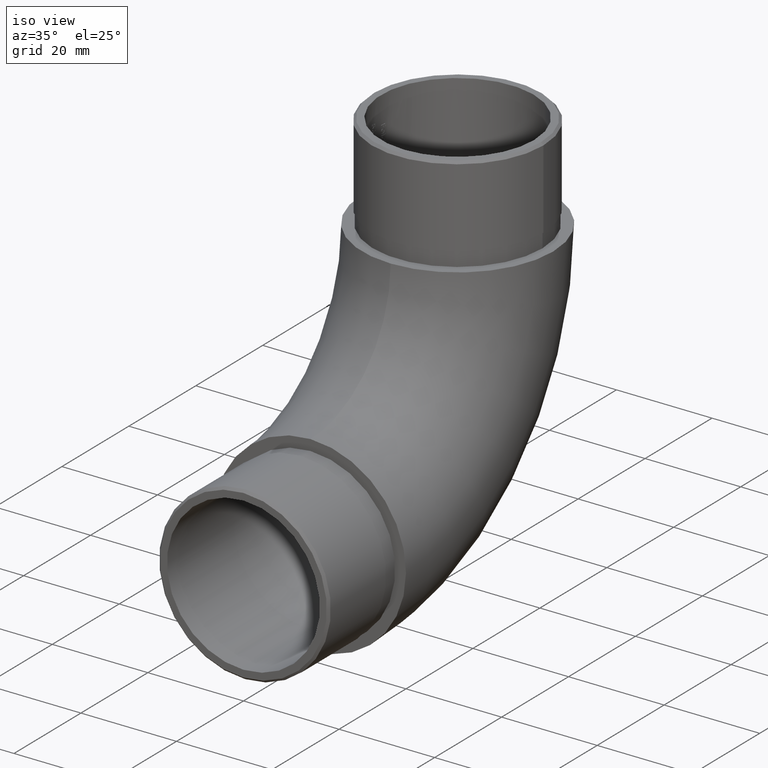
[diagram: clean part render]
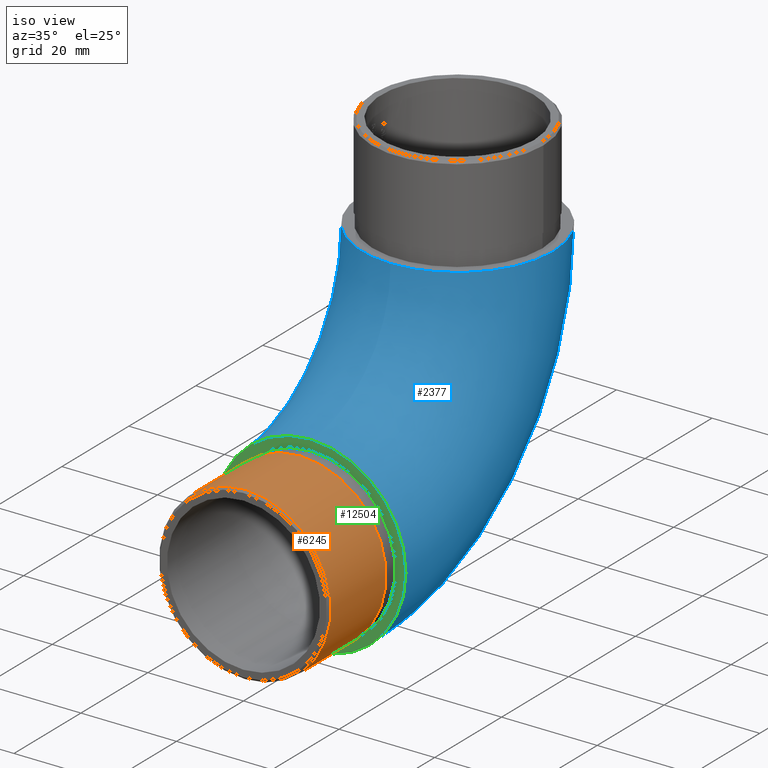
[diagram: same view with three faces highlighted in distinct colors, each labeled with its STEP entity id]
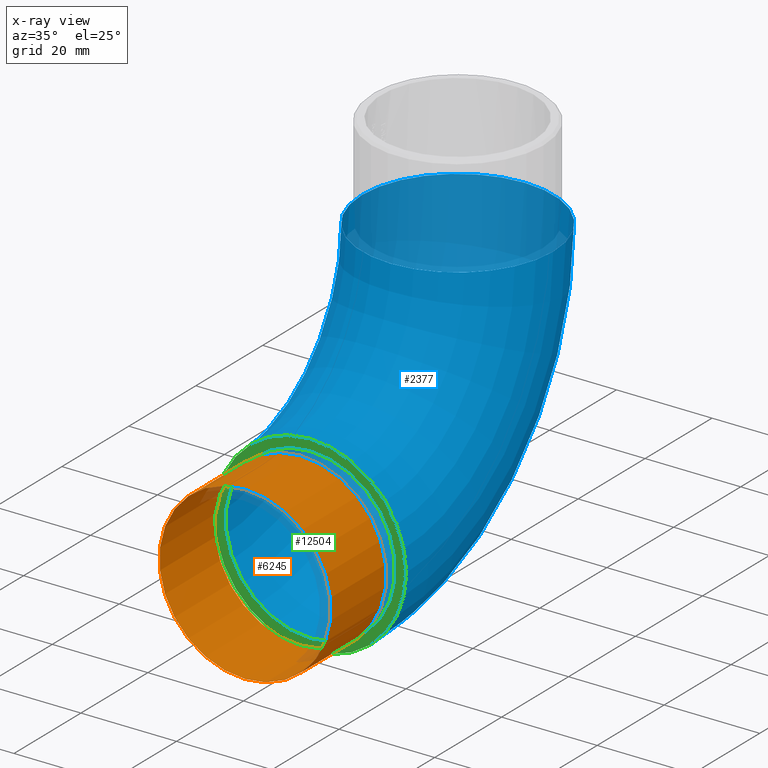
[diagram: x-ray of the same camera — body ghosted, the three highlighted faces saturated]
A machine part, iso view with three faces highlighted in distinct colors.
The next image is the same camera in x-ray (body ghosted, the three faces saturated) — at least one of them is partly hidden behind the body in this view.
Their STEP definitions:

[orange] entity #6245 — the highlighted cylindrical surface (bore or boss wall) has radius 17.95 mm, axis along (-0, 1, -0).
#159 = CARTESIAN_POINT ( 'NONE',  ( 0.0000000000000000000, -3.000000000000000000, 2.050000000000010000 ) ) ;
#1549 = CARTESIAN_POINT ( 'NONE',  ( 0.0000000000000000000, -20.00000000000000000, 20.00000000000001100 ) ) ;
#1933 = CARTESIAN_POINT ( 'NONE',  ( 0.0000000000000000000, -19.49999999999998600, 20.00000000000001100 ) ) ;
#2386 = EDGE_LOOP ( 'NONE', ( #4133 ) ) ;
#3271 = EDGE_LOOP ( 'NONE', ( #12323 ) ) ;
#3759 = CYLINDRICAL_SURFACE ( 'NONE', #8825, 17.94999999999999900 ) ;
#3833 = AXIS2_PLACEMENT_3D ( 'NONE', #5444, #10551, #6522 ) ;
#4133 = ORIENTED_EDGE ( 'NONE', *, *, #12339, .T. ) ;
#5444 = CARTESIAN_POINT ( 'NONE',  ( 0.0000000000000000000, -3.000000000000000000, 20.00000000000001100 ) ) ;
#6245 = ADVANCED_FACE ( 'NONE', ( #8117, #11683 ), #3759, .T. ) ;
#6522 = DIRECTION ( 'NONE',  ( 0.0000000000000000000, 0.0000000000000000000, -1.000000000000000000 ) ) ;
#6595 = CIRCLE ( 'NONE', #8059, 17.94999999999999900 ) ;
#7405 = VERTEX_POINT ( 'NONE', #9516 ) ;
#8059 = AXIS2_PLACEMENT_3D ( 'NONE', #1933, #10077, #8176 ) ;
#8117 = FACE_OUTER_BOUND ( 'NONE', #3271, .T. ) ;
#8176 = DIRECTION ( 'NONE',  ( 0.0000000000000000000, 0.0000000000000000000, -1.000000000000000000 ) ) ;
#8825 = AXIS2_PLACEMENT_3D ( 'NONE', #1549, #9736, #11857 ) ;
#9516 = CARTESIAN_POINT ( 'NONE',  ( 0.0000000000000000000, -19.49999999999998600, 2.050000000000010000 ) ) ;
#9736 = DIRECTION ( 'NONE',  ( -0.0000000000000000000, 1.000000000000000000, -0.0000000000000000000 ) ) ;
#9826 = CIRCLE ( 'NONE', #3833, 17.94999999999999900 ) ;
#10077 = DIRECTION ( 'NONE',  ( 0.0000000000000000000, 1.000000000000000000, 0.0000000000000000000 ) ) ;
#10551 = DIRECTION ( 'NONE',  ( 0.0000000000000000000, -1.000000000000000000, 0.0000000000000000000 ) ) ;
#11373 = EDGE_CURVE ( 'NONE', #7405, #7405, #6595, .T. ) ;
#11683 = FACE_OUTER_BOUND ( 'NONE', #2386, .T. ) ;
#11857 = DIRECTION ( 'NONE',  ( 0.0000000000000000000, 0.0000000000000000000, 1.000000000000000000 ) ) ;
#12276 = VERTEX_POINT ( 'NONE', #159 ) ;
#12323 = ORIENTED_EDGE ( 'NONE', *, *, #11373, .T. ) ;
#12339 = EDGE_CURVE ( 'NONE', #12276, #12276, #9826, .T. ) ;

[blue] entity #2377 — the highlighted toroidal blend (fillet) surface has major radius 44 mm and minor (blend) radius 20 mm.
#261 = AXIS2_PLACEMENT_3D ( 'NONE', #4087, #2899, #11311 ) ;
#1186 = ORIENTED_EDGE ( 'NONE', *, *, #9882, .T. ) ;
#1722 = EDGE_CURVE ( 'NONE', #2558, #2558, #2519, .T. ) ;
#2377 = ADVANCED_FACE ( 'NONE', ( #5744, #2832 ), #8657, .T. ) ;
#2395 = DIRECTION ( 'NONE',  ( 0.0000000000000000000, -1.000000000000000000, 0.0000000000000000000 ) ) ;
#2519 = CIRCLE ( 'NONE', #12991, 20.00000000000000000 ) ;
#2558 = VERTEX_POINT ( 'NONE', #10554 ) ;
#2832 = FACE_OUTER_BOUND ( 'NONE', #9896, .T. ) ;
#2899 = DIRECTION ( 'NONE',  ( 0.0000000000000000000, 1.000000000000000000, 0.0000000000000000000 ) ) ;
#3171 = DIRECTION ( 'NONE',  ( -1.000000000000000000, -0.0000000000000000000, -0.0000000000000000000 ) ) ;
#3720 = CIRCLE ( 'NONE', #261, 20.00000000000000000 ) ;
#4087 = CARTESIAN_POINT ( 'NONE',  ( 0.0000000000000000000, 0.0000000000000000000, 20.00000000000000000 ) ) ;
#4224 = DIRECTION ( 'NONE',  ( 0.0000000000000000000, 0.0000000000000000000, 1.000000000000000000 ) ) ;
#4373 = CARTESIAN_POINT ( 'NONE',  ( 0.0000000000000000000, 0.0000000000000000000, 40.00000000000000000 ) ) ;
#5620 = ORIENTED_EDGE ( 'NONE', *, *, #1722, .F. ) ;
#5744 = FACE_OUTER_BOUND ( 'NONE', #9692, .T. ) ;
#6286 = CARTESIAN_POINT ( 'NONE',  ( 0.0000000000000000000, -6.938893903907228400E-015, 64.00000000000000000 ) ) ;
#6690 = DIRECTION ( 'NONE',  ( 0.0000000000000000000, 6.123233995736766000E-017, 1.000000000000000000 ) ) ;
#8354 = AXIS2_PLACEMENT_3D ( 'NONE', #6286, #3171, #4224 ) ;
#8657 = TOROIDAL_SURFACE ( 'NONE', #8354, 43.99999999999999300, 20.00000000000000000 ) ;
#8770 = CARTESIAN_POINT ( 'NONE',  ( 0.0000000000000000000, 43.99999999999998600, 64.00000000000000000 ) ) ;
#9692 = EDGE_LOOP ( 'NONE', ( #5620 ) ) ;
#9882 = EDGE_CURVE ( 'NONE', #10959, #10959, #3720, .T. ) ;
#9896 = EDGE_LOOP ( 'NONE', ( #1186 ) ) ;
#10554 = CARTESIAN_POINT ( 'NONE',  ( 0.0000000000000000000, 23.99999999999998200, 64.00000000000000000 ) ) ;
#10959 = VERTEX_POINT ( 'NONE', #4373 ) ;
#11311 = DIRECTION ( 'NONE',  ( 0.0000000000000000000, 0.0000000000000000000, 1.000000000000000000 ) ) ;
#12991 = AXIS2_PLACEMENT_3D ( 'NONE', #8770, #6690, #2395 ) ;

[green] entity #12504 — the highlighted planar face has unit normal (0, 1, 0).
#261 = AXIS2_PLACEMENT_3D ( 'NONE', #4087, #2899, #11311 ) ;
#1478 = EDGE_CURVE ( 'NONE', #5314, #5314, #6555, .T. ) ;
#1948 = AXIS2_PLACEMENT_3D ( 'NONE', #2726, #11999, #12980 ) ;
#2298 = ORIENTED_EDGE ( 'NONE', *, *, #9882, .F. ) ;
#2337 = CARTESIAN_POINT ( 'NONE',  ( 0.0000000000000000000, 0.0000000000000000000, 37.75000000000001400 ) ) ;
#2726 = CARTESIAN_POINT ( 'NONE',  ( 0.0000000000000000000, 0.0000000000000000000, 20.00000000000001100 ) ) ;
#2771 = DIRECTION ( 'NONE',  ( 0.0000000000000000000, 1.000000000000000000, 0.0000000000000000000 ) ) ;
#2899 = DIRECTION ( 'NONE',  ( 0.0000000000000000000, 1.000000000000000000, 0.0000000000000000000 ) ) ;
#3720 = CIRCLE ( 'NONE', #261, 20.00000000000000000 ) ;
#4087 = CARTESIAN_POINT ( 'NONE',  ( 0.0000000000000000000, 0.0000000000000000000, 20.00000000000000000 ) ) ;
#4329 = EDGE_LOOP ( 'NONE', ( #13037 ) ) ;
#4359 = FACE_BOUND ( 'NONE', #4329, .T. ) ;
#4373 = CARTESIAN_POINT ( 'NONE',  ( 0.0000000000000000000, 0.0000000000000000000, 40.00000000000000000 ) ) ;
#5314 = VERTEX_POINT ( 'NONE', #2337 ) ;
#6555 = CIRCLE ( 'NONE', #1948, 17.75000000000000400 ) ;
#6920 = DIRECTION ( 'NONE',  ( 0.0000000000000000000, -0.0000000000000000000, 1.000000000000000000 ) ) ;
#8680 = AXIS2_PLACEMENT_3D ( 'NONE', #12046, #2771, #6920 ) ;
#9882 = EDGE_CURVE ( 'NONE', #10959, #10959, #3720, .T. ) ;
#10630 = FACE_OUTER_BOUND ( 'NONE', #12805, .T. ) ;
#10959 = VERTEX_POINT ( 'NONE', #4373 ) ;
#10991 = PLANE ( 'NONE',  #8680 ) ;
#11311 = DIRECTION ( 'NONE',  ( 0.0000000000000000000, 0.0000000000000000000, 1.000000000000000000 ) ) ;
#11999 = DIRECTION ( 'NONE',  ( -0.0000000000000000000, -1.000000000000000000, -0.0000000000000000000 ) ) ;
#12046 = CARTESIAN_POINT ( 'NONE',  ( 0.0000000000000000000, 0.0000000000000000000, 20.00000000000000000 ) ) ;
#12504 = ADVANCED_FACE ( 'NONE', ( #10630, #4359 ), #10991, .F. ) ;
#12805 = EDGE_LOOP ( 'NONE', ( #2298 ) ) ;
#12980 = DIRECTION ( 'NONE',  ( 0.0000000000000000000, 0.0000000000000000000, 1.000000000000000000 ) ) ;
#13037 = ORIENTED_EDGE ( 'NONE', *, *, #1478, .F. ) ;